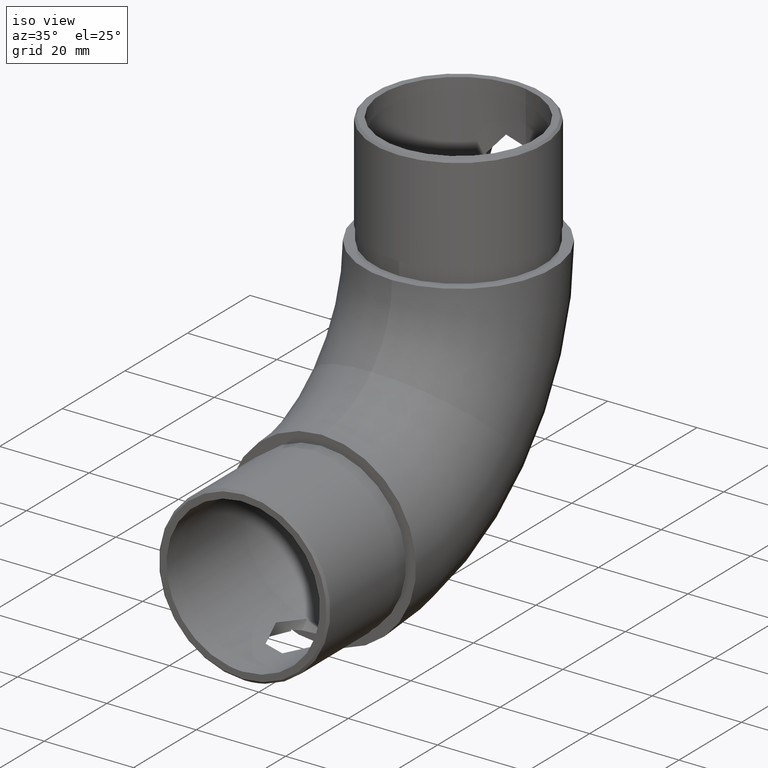
[diagram: clean part render]
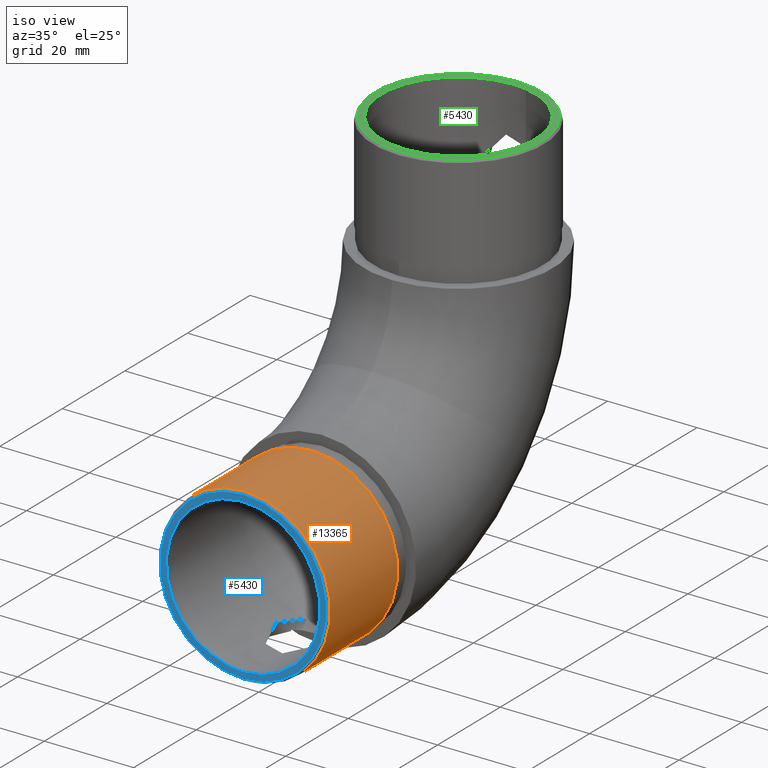
[diagram: same view with three faces highlighted in distinct colors, each labeled with its STEP entity id]
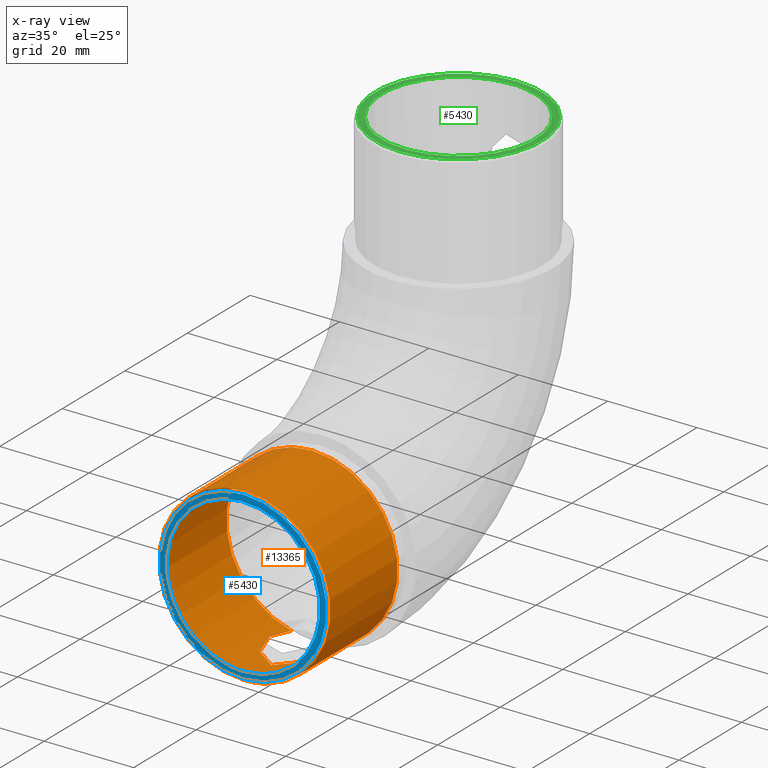
[diagram: x-ray of the same camera — body ghosted, the three highlighted faces saturated]
A machine part, iso view with three faces highlighted in distinct colors.
The next image is the same camera in x-ray (body ghosted, the three faces saturated) — at least one of them is partly hidden behind the body in this view.
Their STEP definitions:

[orange] entity #13365 — the highlighted cylindrical surface (bore or boss wall) has radius 19.15 mm, axis along (0, 1, 0).
#495 = CARTESIAN_POINT ( 'NONE',  ( -5.311047945778656600, -11.57879560517320200, -18.39998446761482500 ) ) ;
#556 = CARTESIAN_POINT ( 'NONE',  ( -0.6934698041429684400, -16.28835548644909900, -19.14038412611122600 ) ) ;
#787 = FACE_OUTER_BOUND ( 'NONE', #4529, .T. ) ;
#819 = CARTESIAN_POINT ( 'NONE',  ( 0.0000000000000000000, -24.99999999999999600, 0.0000000000000000000 ) ) ;
#839 = CARTESIAN_POINT ( 'NONE',  ( 5.697111202283074300, -10.25569775760637900, -18.28307442964300500 ) ) ;
#1363 = CARTESIAN_POINT ( 'NONE',  ( -5.316221817633574700, -4.162119469986829600, -18.39879518013826900 ) ) ;
#1830 = CARTESIAN_POINT ( 'NONE',  ( 1.680963537741388700, -15.96424514970207300, -19.07676072921433500 ) ) ;
#1887 = CARTESIAN_POINT ( 'NONE',  ( 4.596634463434412500, -3.000000000000000000, -18.59014393730094000 ) ) ;
#2281 = CARTESIAN_POINT ( 'NONE',  ( -2.577249236589711900, -15.44320469610375700, -18.97767932319347400 ) ) ;
#2320 = DIRECTION ( 'NONE',  ( 0.0000000000000000000, 0.0000000000000000000, -1.000000000000000000 ) ) ;
#2452 = EDGE_CURVE ( 'NONE', #10447, #7197, #7410, .T. ) ;
#2528 = CARTESIAN_POINT ( 'NONE',  ( -5.008024507770855400, -3.554779143152567000, -18.48842284992859700 ) ) ;
#2740 = ORIENTED_EDGE ( 'NONE', *, *, #2452, .T. ) ;
#3506 = DIRECTION ( 'NONE',  ( 0.0000000000000000000, 0.0000000000000000000, 1.000000000000000000 ) ) ;
#3531 = CARTESIAN_POINT ( 'NONE',  ( -4.577579130941923100, -13.11336016020879200, -18.59556794656620600 ) ) ;
#3578 = CARTESIAN_POINT ( 'NONE',  ( 4.415907328402305200, -13.41895100464174500, -18.63681179627820200 ) ) ;
#3638 = CARTESIAN_POINT ( 'NONE',  ( 2.573928491870389300, -15.44571713879459000, -18.97814246237103600 ) ) ;
#3902 = VERTEX_POINT ( 'NONE', #7827 ) ;
#3922 = FACE_OUTER_BOUND ( 'NONE', #9325, .T. ) ;
#4522 = CARTESIAN_POINT ( 'NONE',  ( 5.611118094734025300, -10.59234648165923800, -18.30980064434639200 ) ) ;
#4529 = EDGE_LOOP ( 'NONE', ( #11218, #2740 ) ) ;
#4579 = CARTESIAN_POINT ( 'NONE',  ( 4.982546159894557300, -3.569079547338321200, -18.49117398700622400 ) ) ;
#4833 = CARTESIAN_POINT ( 'NONE',  ( -5.932713976449658600, -6.490982792097537600, -18.20786677974315600 ) ) ;
#4864 = CARTESIAN_POINT ( 'NONE',  ( -4.403310369466976400, -13.40614845288600600, -18.63792410484324300 ) ) ;
#4925 = CARTESIAN_POINT ( 'NONE',  ( -1.196315893951172000, -16.15142245035647800, -19.11333316033514500 ) ) ;
#5874 = CARTESIAN_POINT ( 'NONE',  ( -5.054132991639442600, -12.21130516830327500, -18.47392084871008000 ) ) ;
#5881 = ORIENTED_EDGE ( 'NONE', *, *, #11360, .T. ) ;
#6227 = CARTESIAN_POINT ( 'NONE',  ( 5.054212829616297100, -12.21158521478483800, -18.47392552047002200 ) ) ;
#6283 = CARTESIAN_POINT ( 'NONE',  ( 1.359872709031611800, -16.09550282804495000, -19.10233453141633600 ) ) ;
#6320 = CARTESIAN_POINT ( 'NONE',  ( 0.0000000000000000000, -24.49999999999999600, 0.0000000000000000000 ) ) ;
#6401 = AXIS2_PLACEMENT_3D ( 'NONE', #819, #16689, #3506 ) ;
#6727 = EDGE_CURVE ( 'NONE', #7197, #10447, #17038, .T. ) ;
#6932 = CARTESIAN_POINT ( 'NONE',  ( -5.654109269180205300, -5.138921770336287100, -18.29664977518865500 ) ) ;
#7197 = VERTEX_POINT ( 'NONE', #13412 ) ;
#7232 = CARTESIAN_POINT ( 'NONE',  ( -5.883926220090455000, -6.150060379972926800, -18.22380922950685200 ) ) ;
#7233 = CARTESIAN_POINT ( 'NONE',  ( 0.3480306252328995200, -16.33639503427164300, -19.15003011741721300 ) ) ;
#7410 = CIRCLE ( 'NONE', #16743, 19.14999999999999900 ) ;
#7529 = CARTESIAN_POINT ( 'NONE',  ( 5.310527383969563300, -11.57952106157102900, -18.40012452509889600 ) ) ;
#7575 = CARTESIAN_POINT ( 'NONE',  ( 5.297837089144115600, -4.178942163335011500, -18.40332045664869700 ) ) ;
#7628 = CARTESIAN_POINT ( 'NONE',  ( -1.682457810394198100, -15.96354209970934200, -19.07662463537170800 ) ) ;
#7687 = CARTESIAN_POINT ( 'NONE',  ( -3.108056308064813600, -15.00356693094623100, -18.89800286028568300 ) ) ;
#7827 = CARTESIAN_POINT ( 'NONE',  ( 0.0000000000000000000, -24.49999999999999600, -19.14999999999999900 ) ) ;
#8110 = CYLINDRICAL_SURFACE ( 'NONE', #6401, 19.14999999999999900 ) ;
#8517 = CARTESIAN_POINT ( 'NONE',  ( -5.852938829725290200, -9.583231236919388600, -18.23382198475071900 ) ) ;
#8564 = CARTESIAN_POINT ( 'NONE',  ( 0.0000000000000000000, -3.000000000000000000, 0.0000000000000000000 ) ) ;
#8578 = CARTESIAN_POINT ( 'NONE',  ( 5.433494824154191600, -4.499415793906804200, -18.36336969484493100 ) ) ;
#8835 = DIRECTION ( 'NONE',  ( 0.0000000000000000000, 1.000000000000000000, 0.0000000000000000000 ) ) ;
#8854 = CARTESIAN_POINT ( 'NONE',  ( -0.3513371268838098600, -16.33609281289196200, -19.14996973985493200 ) ) ;
#8978 = CARTESIAN_POINT ( 'NONE',  ( 5.993477296242224900, -7.186612260023655300, -18.18795566864906400 ) ) ;
#9325 = EDGE_LOOP ( 'NONE', ( #5881 ) ) ;
#9866 = CARTESIAN_POINT ( 'NONE',  ( -1.837652722185048300, -15.88911279274783300, -19.06222826404619400 ) ) ;
#9920 = CARTESIAN_POINT ( 'NONE',  ( 1.193748635804528600, -16.15221545736175200, -19.11348940598557500 ) ) ;
#10218 = CARTESIAN_POINT ( 'NONE',  ( 5.969195139145369000, -8.563208412929642000, -18.19595762872583600 ) ) ;
#10447 = VERTEX_POINT ( 'NONE', #14731 ) ;
#11209 = CARTESIAN_POINT ( 'NONE',  ( 3.350420336301862500, -14.76511718897420000, -18.85604149751955600 ) ) ;
#11218 = ORIENTED_EDGE ( 'NONE', *, *, #6727, .T. ) ;
#11273 = CARTESIAN_POINT ( 'NONE',  ( 5.903258247125615200, -6.149978654140556800, -18.21752036060349400 ) ) ;
#11360 = EDGE_CURVE ( 'NONE', #3902, #3902, #16732, .T. ) ;
#11623 = CARTESIAN_POINT ( 'NONE',  ( 0.6923574430054972900, -16.28846883117826400, -19.14040734895541000 ) ) ;
#11679 = CARTESIAN_POINT ( 'NONE',  ( -5.992437622593734600, -8.219106693402910200, -18.18827180646190200 ) ) ;
#12243 = AXIS2_PLACEMENT_3D ( 'NONE', #6320, #8835, #2320 ) ;
#12414 = CARTESIAN_POINT ( 'NONE',  ( -5.993049154034085100, -7.179184479723614000, -18.18809692168388600 ) ) ;
#12625 = CARTESIAN_POINT ( 'NONE',  ( -5.745059227417538500, -5.475211444856216600, -18.26806243339428400 ) ) ;
#12627 = CARTESIAN_POINT ( 'NONE',  ( -1.362402330456575100, -16.09455981139355500, -19.10214992226250500 ) ) ;
#12665 = DIRECTION ( 'NONE',  ( 0.0000000000000000000, 0.0000000000000000000, -1.000000000000000000 ) ) ;
#12921 = CARTESIAN_POINT ( 'NONE',  ( 2.288798990645547700, -15.64283861317900400, -19.01514856777093200 ) ) ;
#12988 = CARTESIAN_POINT ( 'NONE',  ( 5.769744049361470700, -5.476766763185786100, -18.26163749009097600 ) ) ;
#13035 = CARTESIAN_POINT ( 'NONE',  ( 6.004476523668219400, -7.533831688826842000, -18.18430100347775300 ) ) ;
#13365 = ADVANCED_FACE ( 'NONE', ( #3922, #787 ), #8110, .T. ) ;
#13412 = CARTESIAN_POINT ( 'NONE',  ( -4.596634463434409000, -3.000000000000000000, -18.59014393730094000 ) ) ;
#13909 = CARTESIAN_POINT ( 'NONE',  ( -2.290302567639199300, -15.64189179675792800, -19.01496962449553900 ) ) ;
#14256 = CARTESIAN_POINT ( 'NONE',  ( 3.106486250925601500, -15.00510309004963900, -18.89827352897938800 ) ) ;
#14306 = CARTESIAN_POINT ( 'NONE',  ( -4.018715854274431000, -13.97354205294927400, -18.72461695283391600 ) ) ;
#14368 = CARTESIAN_POINT ( 'NONE',  ( 1.836341966878591200, -15.88976544099445600, -19.06235405581313800 ) ) ;
#14731 = CARTESIAN_POINT ( 'NONE',  ( 4.596634463434412500, -3.000000000000000000, -18.59014393730094000 ) ) ;
#15120 = DIRECTION ( 'NONE',  ( 0.0000000000000000000, -1.000000000000000000, 0.0000000000000000000 ) ) ;
#15255 = CARTESIAN_POINT ( 'NONE',  ( -5.713539444169392700, -10.25499209258055400, -18.27900778791746500 ) ) ;
#15536 = CARTESIAN_POINT ( 'NONE',  ( 4.029668916449522500, -13.99838140349912600, -18.72689878138235300 ) ) ;
#15592 = CARTESIAN_POINT ( 'NONE',  ( 4.802271701902814300, -3.277311647494473700, -18.53929768132264800 ) ) ;
#15657 = CARTESIAN_POINT ( 'NONE',  ( 5.992269074940035800, -8.221315048832787300, -18.18832737339752700 ) ) ;
#15712 = CARTESIAN_POINT ( 'NONE',  ( -3.807275040333400400, -14.24909868052059500, -18.76914374723739700 ) ) ;
#16094 = CARTESIAN_POINT ( 'NONE',  ( -6.004445132606068800, -7.528233065478692900, -18.18431133191293400 ) ) ;
#16525 = CARTESIAN_POINT ( 'NONE',  ( -4.596634463434409000, -3.000000000000000000, -18.59014393730094000 ) ) ;
#16597 = CARTESIAN_POINT ( 'NONE',  ( 5.891606669891691800, -9.243583231514142200, -18.22122760636260000 ) ) ;
#16689 = DIRECTION ( 'NONE',  ( -0.0000000000000000000, 1.000000000000000000, 0.0000000000000000000 ) ) ;
#16732 = CIRCLE ( 'NONE', #12243, 19.14999999999999900 ) ;
#16743 = AXIS2_PLACEMENT_3D ( 'NONE', #8564, #15120, #12665 ) ;
#16896 = CARTESIAN_POINT ( 'NONE',  ( -5.969308823017329700, -8.561926392176332000, -18.19592032447021900 ) ) ;
#16955 = CARTESIAN_POINT ( 'NONE',  ( -3.352402935224229700, -14.76319594982571500, -18.85570191738049000 ) ) ;
#17006 = CARTESIAN_POINT ( 'NONE',  ( 5.837084282416476800, -9.582063867129896600, -18.23886876237153100 ) ) ;
#17038 = B_SPLINE_CURVE_WITH_KNOTS ( 'NONE', 3,
 ( #16525, #2528, #1363, #6932, #12625, #7232, #4833, #12414, #16094, #11679, #16896, #8517, #15255, #495, #5874, #3531, #4864, #14306, #15712, #16955, #7687, #2281, #13909, #9866, #7628, #12627, #4925, #556, #8854, #7233, #11623, #9920, #6283, #1830, #14368, #12921, #3638, #14256, #11209, #15536, #3578, #6227, #7529, #4522, #839, #17006, #16597, #10218, #15657, #13035, #8978, #11273, #12988, #8578, #7575, #4579, #15592, #1887 ),
 .UNSPECIFIED., .F., .F.,
 ( 4, 2, 2, 2, 2, 2, 2, 2, 2, 2, 2, 2, 2, 2, 2, 2, 2, 2, 2, 2, 2, 2, 2, 2, 2, 2, 2, 2, 4 ),
 ( 8.673617379884035500E-019, 0.002060599482509222000, 0.003090899223763833700, 0.004121198965018444900, 0.005151498706273056500, 0.006181798447527668200, 0.008242397930036886300, 0.01030299741254610300, 0.01133329715380071100, 0.01236359689505531900, 0.01339389663630992700, 0.01442419637756453500, 0.01493934624819184100, 0.01545449611881915100, 0.01648479586007376600, 0.01751509560132838100, 0.01803024547195568700, 0.01854539534258299900, 0.01957569508383761100, 0.02060599482509222600, 0.02266659430760146300, 0.02472719379011069700, 0.02575749353136531900, 0.02678779327261994100, 0.02781809301387456300, 0.02884839275512918500, 0.03090899223763841900, 0.03193929197889303800, 0.03296959172014765600 ),
 .UNSPECIFIED. ) ;

[blue] entity #5430 — the highlighted planar face has unit normal (0, -1, 0).
#223 = AXIS2_PLACEMENT_3D ( 'NONE', #12840, #4907, #17044 ) ;
#1866 = DIRECTION ( 'NONE',  ( 0.0000000000000000000, -1.000000000000000000, 0.0000000000000000000 ) ) ;
#4907 = DIRECTION ( 'NONE',  ( 0.0000000000000000000, -1.000000000000000000, 0.0000000000000000000 ) ) ;
#5430 = ADVANCED_FACE ( 'NONE', ( #6428, #8930 ), #14888, .T. ) ;
#6196 = EDGE_LOOP ( 'NONE', ( #15764 ) ) ;
#6428 = FACE_OUTER_BOUND ( 'NONE', #13773, .T. ) ;
#6479 = CIRCLE ( 'NONE', #223, 18.64999999999999900 ) ;
#6851 = CARTESIAN_POINT ( 'NONE',  ( 0.0000000000000000000, -24.99999999999999600, 0.0000000000000000000 ) ) ;
#7271 = DIRECTION ( 'NONE',  ( 0.0000000000000000000, 0.0000000000000000000, -1.000000000000000000 ) ) ;
#7475 = VERTEX_POINT ( 'NONE', #17266 ) ;
#8013 = ORIENTED_EDGE ( 'NONE', *, *, #11265, .T. ) ;
#8258 = DIRECTION ( 'NONE',  ( 0.0000000000000000000, -0.0000000000000000000, -1.000000000000000000 ) ) ;
#8329 = CIRCLE ( 'NONE', #17301, 17.19999999999999900 ) ;
#8930 = FACE_BOUND ( 'NONE', #6196, .T. ) ;
#9207 = DIRECTION ( 'NONE',  ( 0.0000000000000000000, -1.000000000000000000, 0.0000000000000000000 ) ) ;
#10408 = CARTESIAN_POINT ( 'NONE',  ( 0.0000000000000000000, -24.99999999999999600, -17.19999999999999900 ) ) ;
#11265 = EDGE_CURVE ( 'NONE', #7475, #7475, #6479, .T. ) ;
#12840 = CARTESIAN_POINT ( 'NONE',  ( 0.0000000000000000000, -24.99999999999999600, 0.0000000000000000000 ) ) ;
#12930 = VERTEX_POINT ( 'NONE', #10408 ) ;
#13146 = EDGE_CURVE ( 'NONE', #12930, #12930, #8329, .T. ) ;
#13773 = EDGE_LOOP ( 'NONE', ( #8013 ) ) ;
#14888 = PLANE ( 'NONE',  #15402 ) ;
#15070 = CARTESIAN_POINT ( 'NONE',  ( 0.0000000000000000000, -24.99999999999999600, 0.0000000000000000000 ) ) ;
#15402 = AXIS2_PLACEMENT_3D ( 'NONE', #6851, #9207, #8258 ) ;
#15764 = ORIENTED_EDGE ( 'NONE', *, *, #13146, .F. ) ;
#17044 = DIRECTION ( 'NONE',  ( 0.0000000000000000000, 0.0000000000000000000, -1.000000000000000000 ) ) ;
#17266 = CARTESIAN_POINT ( 'NONE',  ( 0.0000000000000000000, -24.99999999999999600, -18.64999999999999900 ) ) ;
#17301 = AXIS2_PLACEMENT_3D ( 'NONE', #15070, #1866, #7271 ) ;

[green] entity #5430 — the highlighted planar face has unit normal (-0, 0, 1).
#223 = AXIS2_PLACEMENT_3D ( 'NONE', #12840, #4907, #17044 ) ;
#1866 = DIRECTION ( 'NONE',  ( 0.0000000000000000000, -1.000000000000000000, 0.0000000000000000000 ) ) ;
#4907 = DIRECTION ( 'NONE',  ( 0.0000000000000000000, -1.000000000000000000, 0.0000000000000000000 ) ) ;
#5430 = ADVANCED_FACE ( 'NONE', ( #6428, #8930 ), #14888, .T. ) ;
#6196 = EDGE_LOOP ( 'NONE', ( #15764 ) ) ;
#6428 = FACE_OUTER_BOUND ( 'NONE', #13773, .T. ) ;
#6479 = CIRCLE ( 'NONE', #223, 18.64999999999999900 ) ;
#6851 = CARTESIAN_POINT ( 'NONE',  ( 0.0000000000000000000, -24.99999999999999600, 0.0000000000000000000 ) ) ;
#7271 = DIRECTION ( 'NONE',  ( 0.0000000000000000000, 0.0000000000000000000, -1.000000000000000000 ) ) ;
#7475 = VERTEX_POINT ( 'NONE', #17266 ) ;
#8013 = ORIENTED_EDGE ( 'NONE', *, *, #11265, .T. ) ;
#8258 = DIRECTION ( 'NONE',  ( 0.0000000000000000000, -0.0000000000000000000, -1.000000000000000000 ) ) ;
#8329 = CIRCLE ( 'NONE', #17301, 17.19999999999999900 ) ;
#8930 = FACE_BOUND ( 'NONE', #6196, .T. ) ;
#9207 = DIRECTION ( 'NONE',  ( 0.0000000000000000000, -1.000000000000000000, 0.0000000000000000000 ) ) ;
#10408 = CARTESIAN_POINT ( 'NONE',  ( 0.0000000000000000000, -24.99999999999999600, -17.19999999999999900 ) ) ;
#11265 = EDGE_CURVE ( 'NONE', #7475, #7475, #6479, .T. ) ;
#12840 = CARTESIAN_POINT ( 'NONE',  ( 0.0000000000000000000, -24.99999999999999600, 0.0000000000000000000 ) ) ;
#12930 = VERTEX_POINT ( 'NONE', #10408 ) ;
#13146 = EDGE_CURVE ( 'NONE', #12930, #12930, #8329, .T. ) ;
#13773 = EDGE_LOOP ( 'NONE', ( #8013 ) ) ;
#14888 = PLANE ( 'NONE',  #15402 ) ;
#15070 = CARTESIAN_POINT ( 'NONE',  ( 0.0000000000000000000, -24.99999999999999600, 0.0000000000000000000 ) ) ;
#15402 = AXIS2_PLACEMENT_3D ( 'NONE', #6851, #9207, #8258 ) ;
#15764 = ORIENTED_EDGE ( 'NONE', *, *, #13146, .F. ) ;
#17044 = DIRECTION ( 'NONE',  ( 0.0000000000000000000, 0.0000000000000000000, -1.000000000000000000 ) ) ;
#17266 = CARTESIAN_POINT ( 'NONE',  ( 0.0000000000000000000, -24.99999999999999600, -18.64999999999999900 ) ) ;
#17301 = AXIS2_PLACEMENT_3D ( 'NONE', #15070, #1866, #7271 ) ;